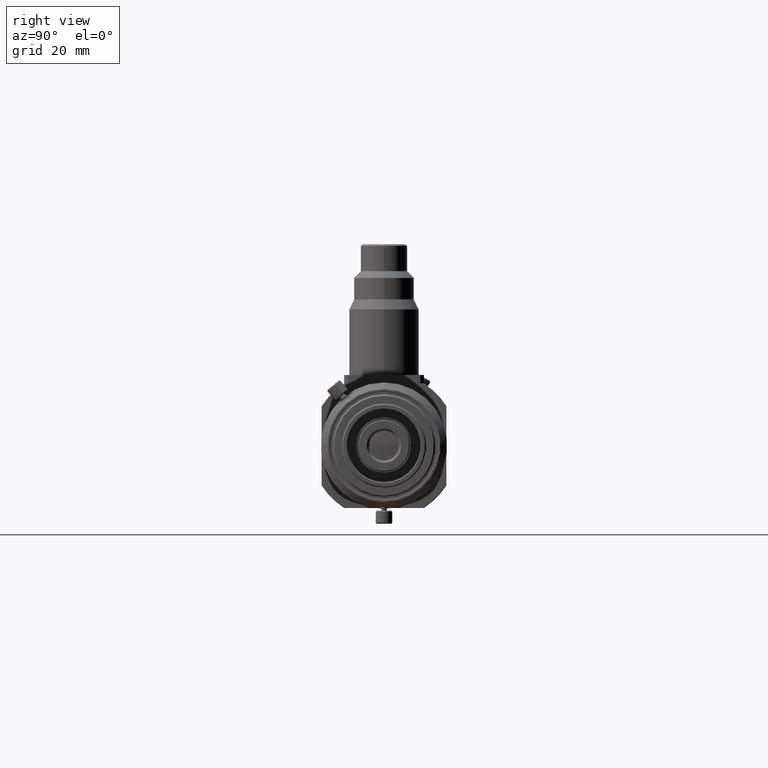
[diagram: clean part render]
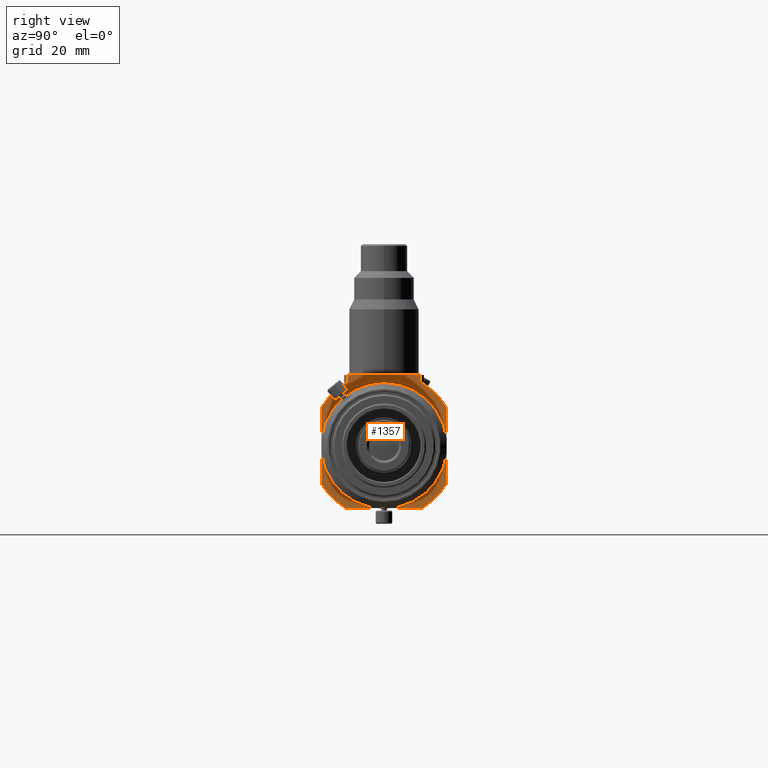
[diagram: same view with one face highlighted and labeled with its STEP entity id]
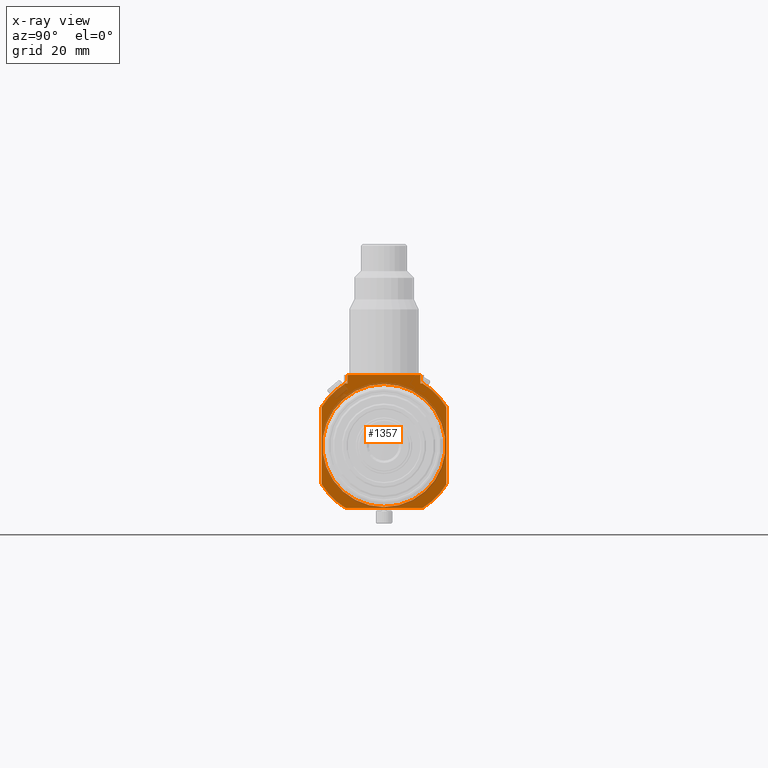
[diagram: x-ray of the same camera — body ghosted, the highlighted face saturated]
A machine part, right view. The second image highlights one B-rep face of the part: STEP entity #1357.
The next image is the same camera in x-ray: the body ghosted, the highlighted face saturated — about 22% of this face is hidden behind the body in this view.
In plain terms, the highlighted planar face has unit normal (1, 0, -0).
Its self-contained STEP definition (entity closure, byte-faithful):
#266 = ORIENTED_EDGE ( 'NONE', *, *, #1857, .T. ) ;
#267 = ORIENTED_EDGE ( 'NONE', *, *, #1856, .F. ) ;
#446 = CARTESIAN_POINT ( 'NONE',  ( -173.2721943623768700, 18.49999999999979000, 18.74999999999995400 ) ) ;
#447 = DIRECTION ( 'NONE',  ( 0.0000000000000000000, 1.000000000000000000, 3.491481338843133400E-015 ) ) ;
#473 = CARTESIAN_POINT ( 'NONE',  ( -173.2721943623768700, 0.0000000000000000000, 0.0000000000000000000 ) ) ;
#474 = DIRECTION ( 'NONE',  ( 1.000000000000000000, -0.0000000000000000000, -0.0000000000000000000 ) ) ;
#475 = DIRECTION ( 'NONE',  ( 0.0000000000000000000, 0.0000000000000000000, -1.000000000000000000 ) ) ;
#501 = CARTESIAN_POINT ( 'NONE',  ( -173.2721943623768700, 0.0000000000000000000, 0.0000000000000000000 ) ) ;
#502 = DIRECTION ( 'NONE',  ( 1.000000000000000000, -0.0000000000000000000, -0.0000000000000000000 ) ) ;
#503 = DIRECTION ( 'NONE',  ( 0.0000000000000000000, 0.0000000000000000000, -1.000000000000000000 ) ) ;
#528 = CARTESIAN_POINT ( 'NONE',  ( -173.2721943623768700, 0.0000000000000000000, 0.0000000000000000000 ) ) ;
#529 = DIRECTION ( 'NONE',  ( 1.000000000000000000, -0.0000000000000000000, -0.0000000000000000000 ) ) ;
#530 = DIRECTION ( 'NONE',  ( 0.0000000000000000000, 0.0000000000000000000, -1.000000000000000000 ) ) ;
#650 = CARTESIAN_POINT ( 'NONE',  ( -173.2721943623768900, 10.95730350040558300, 21.24999999999988600 ) ) ;
#687 = DIRECTION ( 'NONE',  ( -0.0000000000000000000, -0.0000000000000000000, -1.000000000000000000 ) ) ;
#688 = CARTESIAN_POINT ( 'NONE',  ( -173.2721943623768700, 18.50000000000005300, -18.74999999999969800 ) ) ;
#689 = CARTESIAN_POINT ( 'NONE',  ( -173.2721943623768700, 0.0000000000000000000, 0.0000000000000000000 ) ) ;
#690 = DIRECTION ( 'NONE',  ( 1.000000000000000000, -0.0000000000000000000, -0.0000000000000000000 ) ) ;
#691 = DIRECTION ( 'NONE',  ( 0.0000000000000000000, 0.0000000000000000000, -1.000000000000000000 ) ) ;
#692 = DIRECTION ( 'NONE',  ( 0.0000000000000000000, -1.000000000000000000, -1.047444401652940000E-014 ) ) ;
#693 = CARTESIAN_POINT ( 'NONE',  ( -173.2721943623768700, 18.74999999999989000, 0.0000000000000000000 ) ) ;
#694 = DIRECTION ( 'NONE',  ( 0.0000000000000000000, 0.0000000000000000000, -1.000000000000000000 ) ) ;
#696 = CARTESIAN_POINT ( 'NONE',  ( -173.2721943623768700, 0.0000000000000000000, 0.0000000000000000000 ) ) ;
#697 = DIRECTION ( 'NONE',  ( 1.000000000000000000, -0.0000000000000000000, -0.0000000000000000000 ) ) ;
#698 = DIRECTION ( 'NONE',  ( 0.0000000000000000000, 0.0000000000000000000, -1.000000000000000000 ) ) ;
#699 = CARTESIAN_POINT ( 'NONE',  ( -173.2721943623768900, -10.95730350040552100, 21.24999999999988600 ) ) ;
#700 = DIRECTION ( 'NONE',  ( -0.0000000000000000000, -0.0000000000000000000, -1.000000000000000000 ) ) ;
#701 = CARTESIAN_POINT ( 'NONE',  ( -173.2721943623768700, -18.74999999999988600, 0.0000000000000000000 ) ) ;
#702 = DIRECTION ( 'NONE',  ( 0.0000000000000000000, 0.0000000000000000000, 1.000000000000000000 ) ) ;
#1050 = CARTESIAN_POINT ( 'NONE',  ( -173.2721943623768700, 18.49999999999985800, 0.0000000000000000000 ) ) ;
#1057 = PLANE ( 'NONE',  #4566 ) ;
#1111 = DIRECTION ( 'NONE',  ( -0.0000000000000000000, 0.0000000000000000000, -1.000000000000000000 ) ) ;
#1131 = DIRECTION ( 'NONE',  ( 1.000000000000000000, 0.0000000000000000000, -0.0000000000000000000 ) ) ;
#1357 = ADVANCED_FACE ( 'NONE', ( #5585, #5588 ), #1057, .T. ) ;
#1768 = EDGE_CURVE ( 'NONE', #5301, #5496, #6521, .T. ) ;
#1777 = EDGE_CURVE ( 'NONE', #5417, #5333, #6531, .T. ) ;
#1783 = EDGE_CURVE ( 'NONE', #5430, #5504, #6539, .T. ) ;
#1791 = EDGE_CURVE ( 'NONE', #5437, #5434, #6546, .T. ) ;
#1800 = EDGE_CURVE ( 'NONE', #5419, #5392, #6553, .T. ) ;
#1809 = EDGE_CURVE ( 'NONE', #5430, #5501, #6565, .T. ) ;
#1854 = EDGE_CURVE ( 'NONE', #5384, #5342, #6607, .T. ) ;
#1855 = EDGE_CURVE ( 'NONE', #5437, #5392, #6608, .T. ) ;
#1856 = EDGE_CURVE ( 'NONE', #5380, #5434, #6610, .T. ) ;
#1857 = EDGE_CURVE ( 'NONE', #5380, #5333, #6612, .T. ) ;
#1858 = EDGE_CURVE ( 'NONE', #5496, #5417, #6614, .T. ) ;
#1859 = EDGE_CURVE ( 'NONE', #5301, #5504, #6615, .T. ) ;
#1860 = EDGE_CURVE ( 'NONE', #5419, #5501, #6617, .T. ) ;
#2726 = CARTESIAN_POINT ( 'NONE',  ( -173.2721943623768700, 0.0000000000000000000, 0.0000000000000000000 ) ) ;
#2727 = DIRECTION ( 'NONE',  ( 1.000000000000000000, -0.0000000000000000000, -0.0000000000000000000 ) ) ;
#2728 = DIRECTION ( 'NONE',  ( 0.0000000000000000000, 0.0000000000000000000, -1.000000000000000000 ) ) ;
#3048 = CARTESIAN_POINT ( 'NONE',  ( -173.2721943623768900, -10.95730350040552100, 21.24999999999988600 ) ) ;
#3080 = CARTESIAN_POINT ( 'NONE',  ( -173.2721943623768700, 11.60344776348835100, 18.74999999999992900 ) ) ;
#3089 = CARTESIAN_POINT ( 'NONE',  ( -173.2721943623768700, 0.0000000000000000000, -18.49999999999985800 ) ) ;
#3127 = CARTESIAN_POINT ( 'NONE',  ( -173.2721943623768700, 18.74999999999989000, 11.60344776348841700 ) ) ;
#3131 = CARTESIAN_POINT ( 'NONE',  ( -173.2721943623768700, 2.265596578422586000E-015, 18.49999999999985800 ) ) ;
#3139 = CARTESIAN_POINT ( 'NONE',  ( -173.2721943623768700, -11.60344776348821600, -18.75000000000001400 ) ) ;
#3164 = CARTESIAN_POINT ( 'NONE',  ( -173.2721943623768700, 10.95730350040555500, 18.74999999999992500 ) ) ;
#3166 = CARTESIAN_POINT ( 'NONE',  ( -173.2721943623768700, -18.74999999999988600, -11.60344776348842200 ) ) ;
#3177 = CARTESIAN_POINT ( 'NONE',  ( -173.2721943623768700, -11.60344776348848200, 18.74999999999984700 ) ) ;
#3181 = CARTESIAN_POINT ( 'NONE',  ( -173.2721943623768700, 18.74999999999989000, -11.60344776348841700 ) ) ;
#3184 = CARTESIAN_POINT ( 'NONE',  ( -173.2721943623768700, 11.60344776348860800, -18.74999999999976900 ) ) ;
#3243 = CARTESIAN_POINT ( 'NONE',  ( -173.2721943623768900, 10.95730350040558300, 21.24999999999988600 ) ) ;
#3248 = CARTESIAN_POINT ( 'NONE',  ( -173.2721943623768700, -18.74999999999988600, 11.60344776348842200 ) ) ;
#3251 = CARTESIAN_POINT ( 'NONE',  ( -173.2721943623768700, -10.95730350040549300, 18.74999999999985100 ) ) ;
#3568 = EDGE_CURVE ( 'NONE', #5342, #5384, #7453, .T. ) ;
#3626 = ORIENTED_EDGE ( 'NONE', *, *, #1809, .T. ) ;
#3627 = ORIENTED_EDGE ( 'NONE', *, *, #1777, .F. ) ;
#3628 = ORIENTED_EDGE ( 'NONE', *, *, #1858, .F. ) ;
#3647 = ORIENTED_EDGE ( 'NONE', *, *, #1768, .F. ) ;
#3648 = ORIENTED_EDGE ( 'NONE', *, *, #1859, .T. ) ;
#4162 = EDGE_LOOP ( 'NONE', ( #4459, #4681 ) ) ;
#4177 = EDGE_LOOP ( 'NONE', ( #5022, #5007, #267, #266, #3627, #3628, #3647, #3648, #5245, #3626, #4457, #4458 ) ) ;
#4457 = ORIENTED_EDGE ( 'NONE', *, *, #1860, .F. ) ;
#4458 = ORIENTED_EDGE ( 'NONE', *, *, #1800, .T. ) ;
#4459 = ORIENTED_EDGE ( 'NONE', *, *, #3568, .F. ) ;
#4566 = AXIS2_PLACEMENT_3D ( 'NONE', #1050, #1131, #1111 ) ;
#4681 = ORIENTED_EDGE ( 'NONE', *, *, #1854, .F. ) ;
#5007 = ORIENTED_EDGE ( 'NONE', *, *, #1791, .T. ) ;
#5022 = ORIENTED_EDGE ( 'NONE', *, *, #1855, .F. ) ;
#5245 = ORIENTED_EDGE ( 'NONE', *, *, #1783, .F. ) ;
#5301 = VERTEX_POINT ( 'NONE', #3048 ) ;
#5333 = VERTEX_POINT ( 'NONE', #3080 ) ;
#5342 = VERTEX_POINT ( 'NONE', #3089 ) ;
#5380 = VERTEX_POINT ( 'NONE', #3127 ) ;
#5384 = VERTEX_POINT ( 'NONE', #3131 ) ;
#5392 = VERTEX_POINT ( 'NONE', #3139 ) ;
#5417 = VERTEX_POINT ( 'NONE', #3164 ) ;
#5419 = VERTEX_POINT ( 'NONE', #3166 ) ;
#5430 = VERTEX_POINT ( 'NONE', #3177 ) ;
#5434 = VERTEX_POINT ( 'NONE', #3181 ) ;
#5437 = VERTEX_POINT ( 'NONE', #3184 ) ;
#5496 = VERTEX_POINT ( 'NONE', #3243 ) ;
#5501 = VERTEX_POINT ( 'NONE', #3248 ) ;
#5504 = VERTEX_POINT ( 'NONE', #3251 ) ;
#5585 = FACE_OUTER_BOUND ( 'NONE', #4177, .T. ) ;
#5588 = FACE_BOUND ( 'NONE', #4162, .T. ) ;
#6312 = AXIS2_PLACEMENT_3D ( 'NONE', #473, #474, #475 ) ;
#6316 = AXIS2_PLACEMENT_3D ( 'NONE', #501, #502, #503 ) ;
#6320 = AXIS2_PLACEMENT_3D ( 'NONE', #528, #529, #530 ) ;
#6360 = AXIS2_PLACEMENT_3D ( 'NONE', #689, #690, #691 ) ;
#6361 = AXIS2_PLACEMENT_3D ( 'NONE', #696, #697, #698 ) ;
#6444 = CARTESIAN_POINT ( 'NONE',  ( -173.2721943623768900, -10.95730350040552100, 21.24999999999988600 ) ) ;
#6445 = DIRECTION ( 'NONE',  ( 0.0000000000000000000, 1.000000000000000000, 0.0000000000000000000 ) ) ;
#6462 = DIRECTION ( 'NONE',  ( 0.0000000000000000000, 1.000000000000000000, 3.491481338843133400E-015 ) ) ;
#6474 = CARTESIAN_POINT ( 'NONE',  ( -173.2721943623768700, 18.49999999999979000, 18.74999999999995400 ) ) ;
#6521 = LINE ( 'NONE', #6444, #6523 ) ;
#6523 = VECTOR ( 'NONE', #6445, 1000.000000000000000 ) ;
#6531 = LINE ( 'NONE', #6474, #6535 ) ;
#6535 = VECTOR ( 'NONE', #6462, 1000.000000000000000 ) ;
#6538 = VECTOR ( 'NONE', #447, 1000.000000000000000 ) ;
#6539 = LINE ( 'NONE', #446, #6538 ) ;
#6546 = CIRCLE ( 'NONE', #6312, 22.05000000000000400 ) ;
#6553 = CIRCLE ( 'NONE', #6316, 22.05000000000000400 ) ;
#6565 = CIRCLE ( 'NONE', #6320, 22.05000000000000400 ) ;
#6607 = CIRCLE ( 'NONE', #6360, 18.49999999999985800 ) ;
#6608 = LINE ( 'NONE', #688, #6611 ) ;
#6610 = LINE ( 'NONE', #693, #6613 ) ;
#6611 = VECTOR ( 'NONE', #692, 1000.000000000000000 ) ;
#6612 = CIRCLE ( 'NONE', #6361, 22.05000000000000400 ) ;
#6613 = VECTOR ( 'NONE', #694, 1000.000000000000000 ) ;
#6614 = LINE ( 'NONE', #650, #6616 ) ;
#6615 = LINE ( 'NONE', #699, #6618 ) ;
#6616 = VECTOR ( 'NONE', #687, 1000.000000000000000 ) ;
#6617 = LINE ( 'NONE', #701, #6620 ) ;
#6618 = VECTOR ( 'NONE', #700, 1000.000000000000000 ) ;
#6620 = VECTOR ( 'NONE', #702, 1000.000000000000000 ) ;
#7362 = AXIS2_PLACEMENT_3D ( 'NONE', #2726, #2727, #2728 ) ;
#7453 = CIRCLE ( 'NONE', #7362, 18.49999999999985800 ) ;